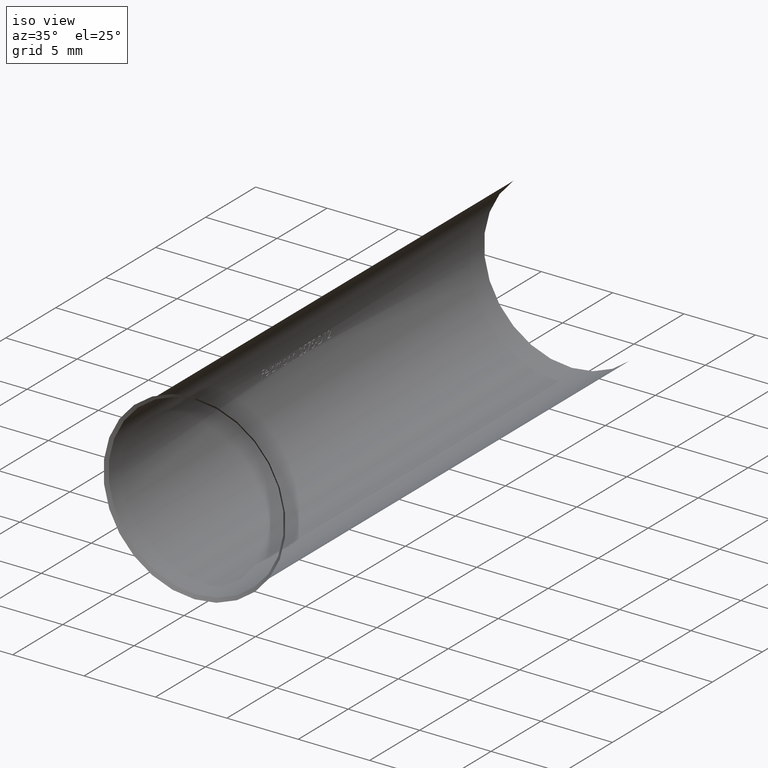
[diagram: clean part render]
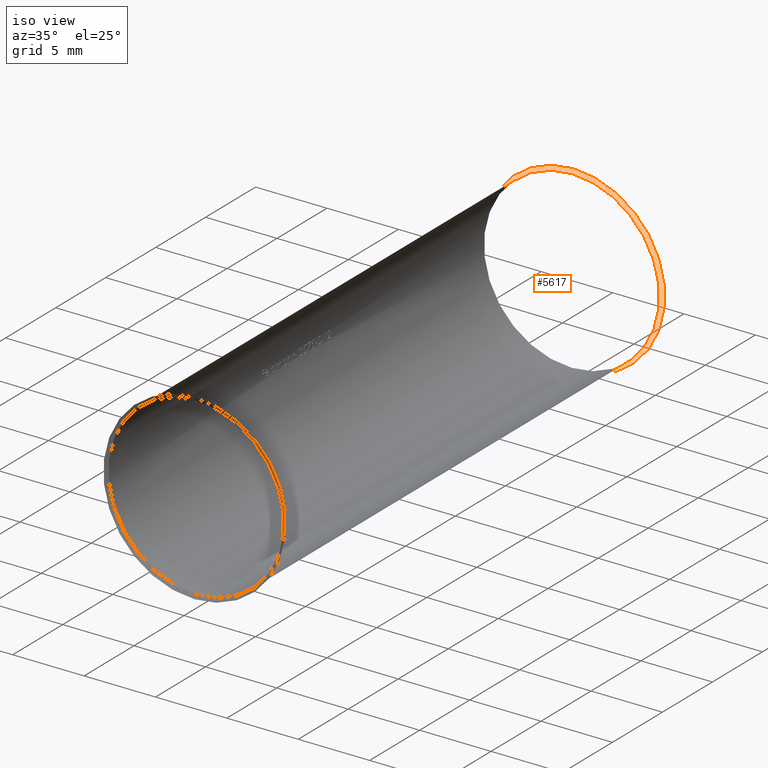
[diagram: same view with one face highlighted and labeled with its STEP entity id]
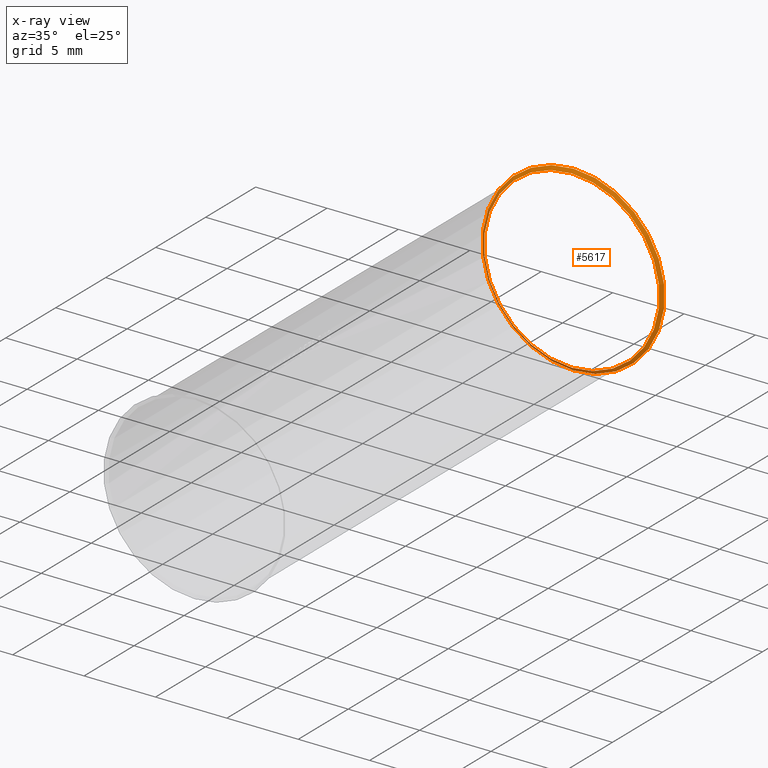
[diagram: x-ray of the same camera — body ghosted, the highlighted face saturated]
A machine part, iso view. The second image highlights one B-rep face of the part: STEP entity #5617.
The next image is the same camera in x-ray: the body ghosted, the highlighted face saturated — about 0% of this face is hidden behind the body in this view.
In plain terms, the highlighted conical surface has half-angle 53.954 deg.
Its self-contained STEP definition (entity closure, byte-faithful):
#6 = CIRCLE ( 'NONE', #584, 6.386338515270711700 ) ;
#557 = CIRCLE ( 'NONE', #3836, 6.150000000000002100 ) ;
#584 = AXIS2_PLACEMENT_3D ( 'NONE', #6050, #8444, #5281 ) ;
#622 = DIRECTION ( 'NONE',  ( 0.0000000000000000000, 1.000000000000000000, 0.0000000000000000000 ) ) ;
#1159 = EDGE_LOOP ( 'NONE', ( #9141 ) ) ;
#1327 = VERTEX_POINT ( 'NONE', #6443 ) ;
#2085 = VERTEX_POINT ( 'NONE', #4215 ) ;
#2274 = CONICAL_SURFACE ( 'NONE', #4783, 6.150000000000002100, 0.9416804711593931300 ) ;
#2411 = EDGE_LOOP ( 'NONE', ( #3063 ) ) ;
#2430 = DIRECTION ( 'NONE',  ( 0.0000000000000000000, 1.000000000000000000, 0.0000000000000000000 ) ) ;
#2578 = EDGE_CURVE ( 'NONE', #2085, #2085, #557, .T. ) ;
#2976 = DIRECTION ( 'NONE',  ( 0.0000000000000000000, 0.0000000000000000000, -1.000000000000000000 ) ) ;
#3063 = ORIENTED_EDGE ( 'NONE', *, *, #2578, .F. ) ;
#3836 = AXIS2_PLACEMENT_3D ( 'NONE', #10161, #622, #2976 ) ;
#4215 = CARTESIAN_POINT ( 'NONE',  ( 1.836970198721029600E-015, 18.78096161522059400, -6.150000000000002100 ) ) ;
#4521 = FACE_OUTER_BOUND ( 'NONE', #1159, .T. ) ;
#4783 = AXIS2_PLACEMENT_3D ( 'NONE', #9389, #2430, #6444 ) ;
#5281 = DIRECTION ( 'NONE',  ( 0.0000000000000000000, 0.0000000000000000000, -1.000000000000000000 ) ) ;
#5617 = ADVANCED_FACE ( 'NONE', ( #4521, #9733 ), #2274, .F. ) ;
#6050 = CARTESIAN_POINT ( 'NONE',  ( 0.0000000000000000000, 18.95295967305290900, 0.0000000000000000000 ) ) ;
#6443 = CARTESIAN_POINT ( 'NONE',  ( 0.0000000000000000000, 18.95295967305290900, -6.386338515270711700 ) ) ;
#6444 = DIRECTION ( 'NONE',  ( 0.0000000000000000000, 0.0000000000000000000, 1.000000000000000000 ) ) ;
#7459 = EDGE_CURVE ( 'NONE', #1327, #1327, #6, .T. ) ;
#8444 = DIRECTION ( 'NONE',  ( -0.0000000000000000000, -1.000000000000000000, -0.0000000000000000000 ) ) ;
#9141 = ORIENTED_EDGE ( 'NONE', *, *, #7459, .F. ) ;
#9389 = CARTESIAN_POINT ( 'NONE',  ( 1.836970198721029600E-015, 18.78096161522059400, 0.0000000000000000000 ) ) ;
#9733 = FACE_BOUND ( 'NONE', #2411, .T. ) ;
#10161 = CARTESIAN_POINT ( 'NONE',  ( 1.836970198721029600E-015, 18.78096161522059400, 0.0000000000000000000 ) ) ;